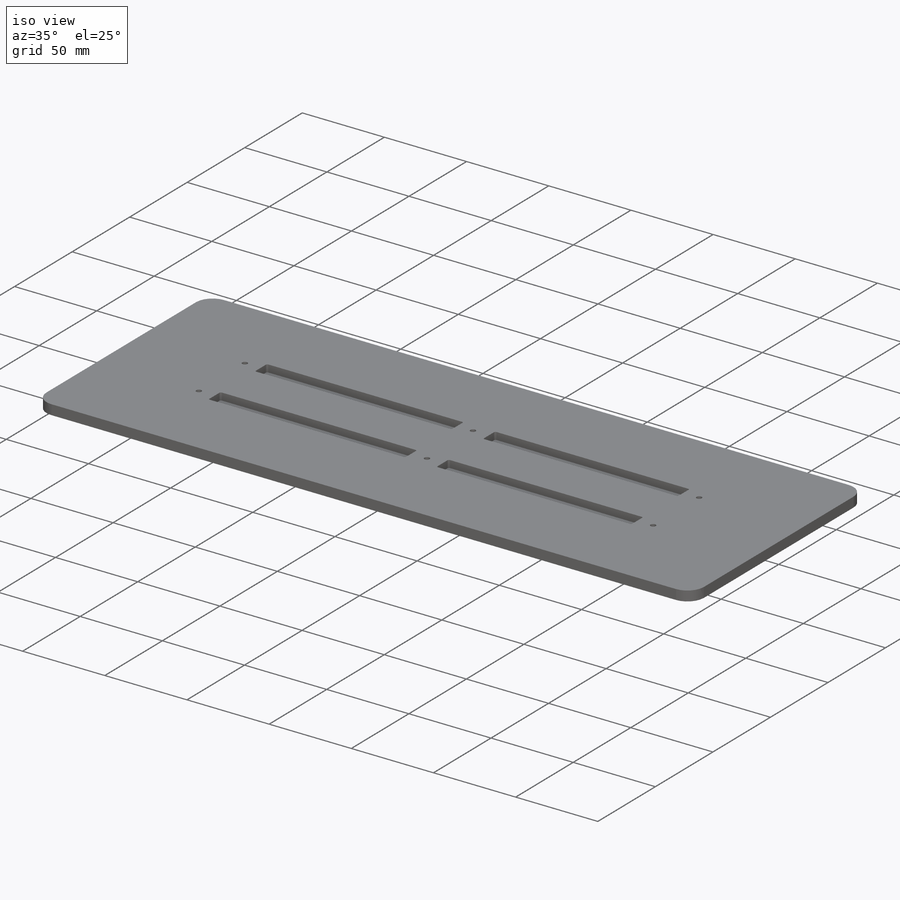
[diagram: iso view]
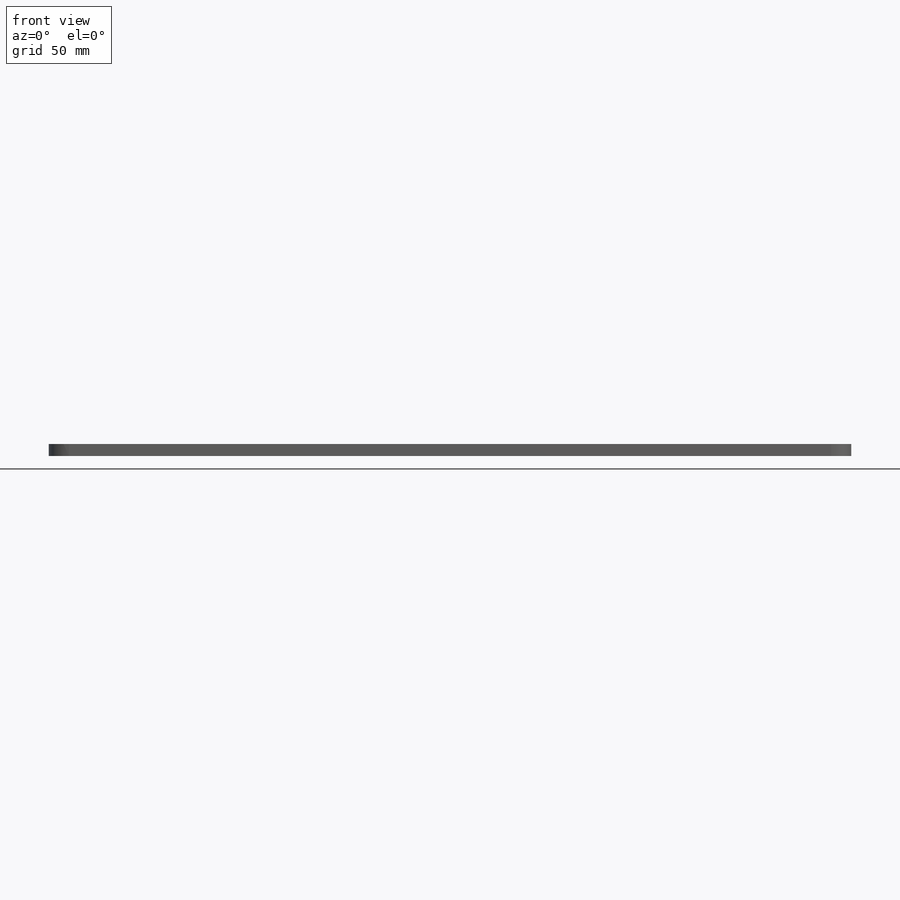
[diagram: front view]
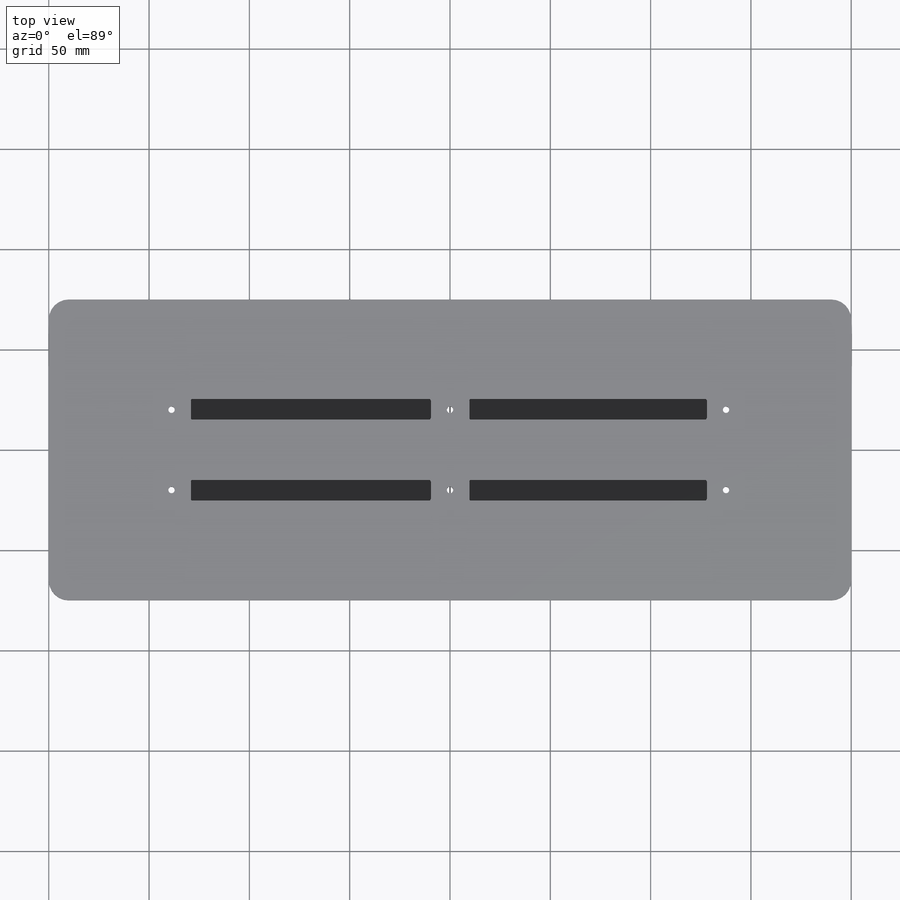
[diagram: top view]
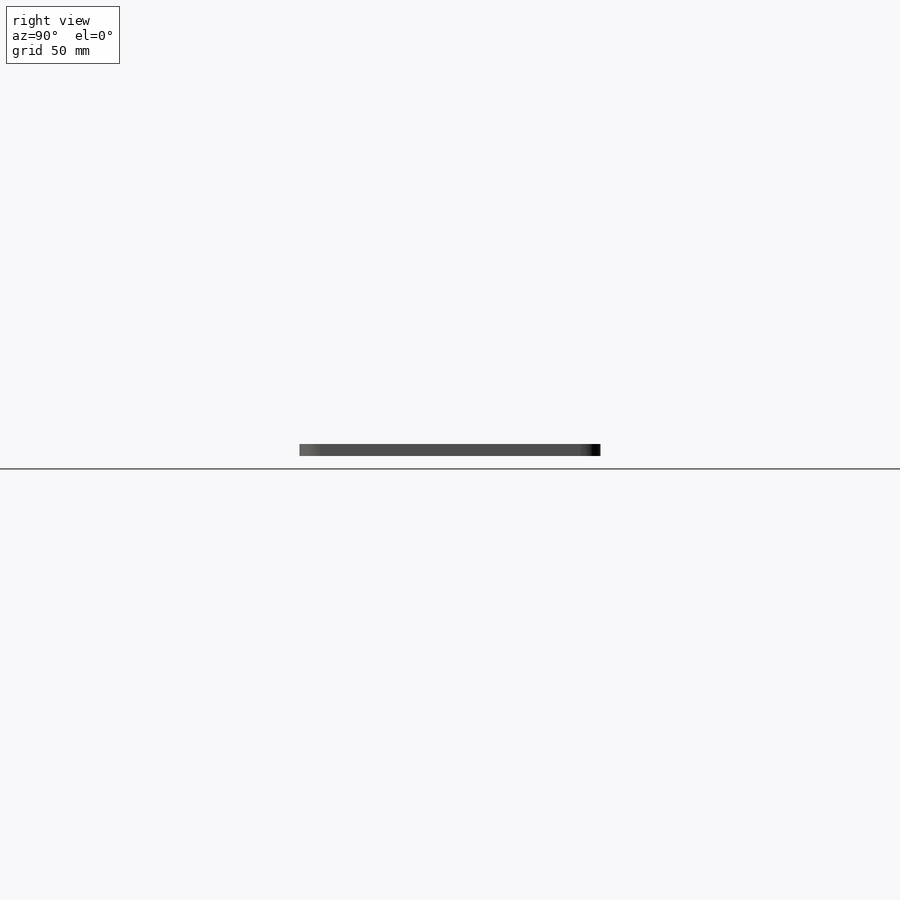
[diagram: right view]
SOLIDWORKS PART (.sldprt)
format: sldprt  version: not decoded by parser v0  size: 287,232 bytes
history: native  units: mm
features: sketch x4, plane x3, cut_extrude x3, fillet x2, material x1, extrude x1 (+10 scaffold rows collapsed)
feature tree (24):
  scaffold x10  (default folders/planes/origin — collapsed)
  material  "Malzeme <belirli değil>"
  plane  "Ön Düzlem"
  plane  "Üst Düzlem"
  plane  "Sağ Düzlem"
  sketch  "Çizim1"  dims[D1=400.0mm D2=150.0mm]
  extrude  "Yükseklik-Ekstrüzyon1"  Depth=6mm
  sketch  "Çizim2"  dims[D1=10.4mm D2=15.0mm D3=19.2mm D4=19.2mm D5=19.2mm D6=138.8mm D7=137.59mm]
  cut_extrude  "Kes-Ekstrüzyon1"  Depth=4.4mm
  fillet  "Radyus1"  Radius=10mm
  sketch  "Çizim3"  dims[c1.D4=3.15mm c1.D1=20.0mm c1.D2=138.8mm c1.D3=137.59mm c2.D4=30.0mm]
  cut_extrude  "Kes-Ekstrüzyon2"  [1 undecoded]
  sketch  "Çizim4"  dims[D1=5.5mm]
  cut_extrude  "Kes-Ekstrüzyon3"  Depth=2.89mm
  fillet  "Radyus2"  Radius=1mm
decode coverage: 9 of 10 modeling features carry decoded parameters
note: 1 parameter value undecoded
note: suppression state not decoded; provenance and decode notes live in map.json
